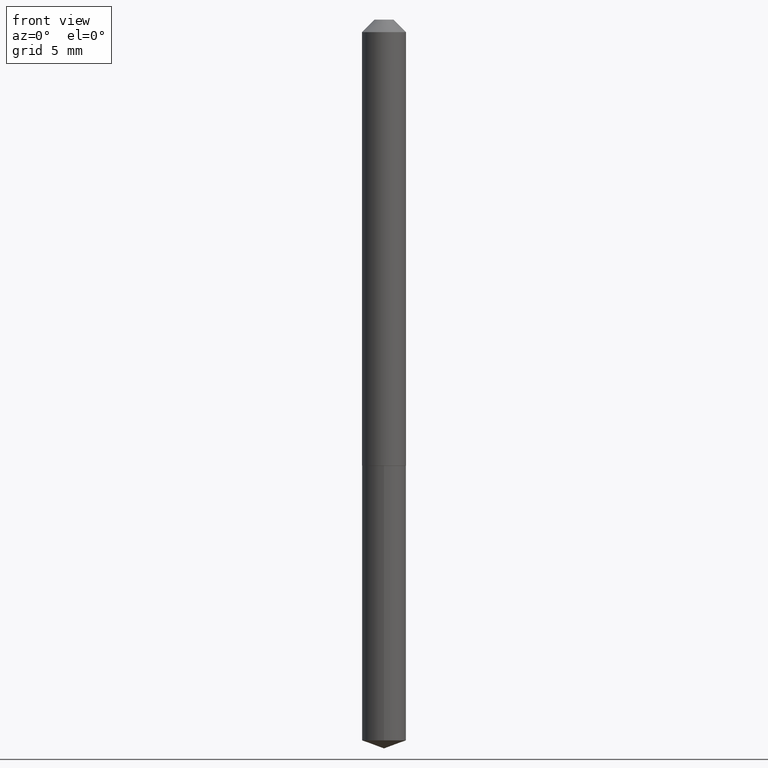
[diagram: clean part render]
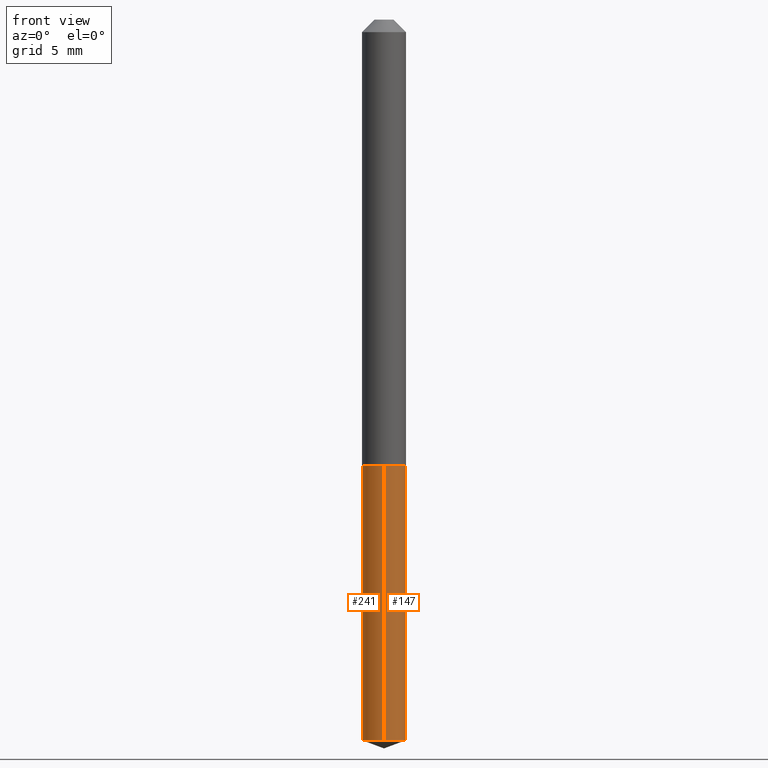
[diagram: same view with one multi-face feature highlighted, each face labeled with its STEP entity id]
A machine part, front view. The highlighted faces form ONE feature: a constant-radius fillet chain: 2 tangent blend faces with common blend radius 1.3894 mm. The faces share edges in the B-rep.
Their STEP definitions:
[1] entity #147 (Cylinder):
#10 = EDGE_CURVE ( 'NONE', #53, #162, #381, .T. ) ;
#16 = CARTESIAN_POINT ( 'NONE',  ( 2.713003093581790888E-29, -3.873449397312585946E-15, -1.109400000000000164 ) ) ;
#18 = EDGE_LOOP ( 'NONE', ( #322, #89, #185, #248 ) ) ;
#39 = DIRECTION ( 'NONE',  ( -6.982962677686265922E-15, -1.000000000000000000, 2.497118824190368439E-15 ) ) ;
#44 = VECTOR ( 'NONE', #303, 39.37007874015748143 ) ;
#46 = CARTESIAN_POINT ( 'NONE',  ( 3.886668764608186723E-16, 0.05469999999999611284, -1.109400000000000164 ) ) ;
#48 = DIRECTION ( 'NONE',  ( -6.982962677686265922E-15, -1.000000000000000000, 2.497118824190368439E-15 ) ) ;
#53 = VERTEX_POINT ( 'NONE', #356 ) ;
#64 = EDGE_CURVE ( 'NONE', #337, #162, #220, .T. ) ;
#77 = CARTESIAN_POINT ( 'NONE',  ( -3.819680584693948069E-16, -0.05470000000000622975, -1.792590828185638641 ) ) ;
#89 = ORIENTED_EDGE ( 'NONE', *, *, #64, .T. ) ;
#122 = LINE ( 'NONE', #298, #345 ) ;
#141 = AXIS2_PLACEMENT_3D ( 'NONE', #242, #281, #39 ) ;
#147 = ADVANCED_FACE ( 'NONE', ( #196 ), #315, .T. ) ;
#150 = DIRECTION ( 'NONE',  ( -2.445808676261614440E-29, 3.490994625549426148E-15, 1.000000000000000000 ) ) ;
#162 = VERTEX_POINT ( 'NONE', #46 ) ;
#185 = ORIENTED_EDGE ( 'NONE', *, *, #10, .F. ) ;
#196 = FACE_OUTER_BOUND ( 'NONE', #18, .T. ) ;
#206 = EDGE_CURVE ( 'NONE', #275, #337, #230, .T. ) ;
#214 = CARTESIAN_POINT ( 'NONE',  ( 3.886668764608018597E-16, 0.05469999999999612672, -1.109400000000000164 ) ) ;
#220 = LINE ( 'NONE', #214, #44 ) ;
#230 = CIRCLE ( 'NONE', #338, 0.05469999999999999862 ) ;
#235 = DIRECTION ( 'NONE',  ( -2.445808676261614440E-29, 3.490994625549426148E-15, 1.000000000000000000 ) ) ;
#242 = CARTESIAN_POINT ( 'NONE',  ( 2.713003093581790888E-29, -3.873449397312585946E-15, -1.109400000000000164 ) ) ;
#243 = CARTESIAN_POINT ( 'NONE',  ( 3.886668764608184751E-16, 0.05469999999999372586, -1.792590828185639307 ) ) ;
#248 = ORIENTED_EDGE ( 'NONE', *, *, #380, .F. ) ;
#256 = DIRECTION ( 'NONE',  ( -2.445808676261614440E-29, 3.490994625549426148E-15, 1.000000000000000000 ) ) ;
#260 = CARTESIAN_POINT ( 'NONE',  ( 4.383957148700584574E-29, -6.258464906733312239E-15, -1.792590828185639085 ) ) ;
#275 = VERTEX_POINT ( 'NONE', #77 ) ;
#281 = DIRECTION ( 'NONE',  ( -2.445808676261614440E-29, 3.490994625549426148E-15, 1.000000000000000000 ) ) ;
#298 = CARTESIAN_POINT ( 'NONE',  ( -3.819680584694116195E-16, -0.05470000000000387747, -1.109399999999999942 ) ) ;
#303 = DIRECTION ( 'NONE',  ( -2.445808676261614440E-29, 3.490994625549426148E-15, 1.000000000000000000 ) ) ;
#315 = CYLINDRICAL_SURFACE ( 'NONE', #347, 0.05469999999999999862 ) ;
#322 = ORIENTED_EDGE ( 'NONE', *, *, #206, .T. ) ;
#337 = VERTEX_POINT ( 'NONE', #243 ) ;
#338 = AXIS2_PLACEMENT_3D ( 'NONE', #260, #235, #382 ) ;
#345 = VECTOR ( 'NONE', #150, 39.37007874015748143 ) ;
#347 = AXIS2_PLACEMENT_3D ( 'NONE', #16, #256, #48 ) ;
#356 = CARTESIAN_POINT ( 'NONE',  ( -3.819680584694116195E-16, -0.05470000000000387747, -1.109399999999999942 ) ) ;
#380 = EDGE_CURVE ( 'NONE', #275, #53, #122, .T. ) ;
#381 = CIRCLE ( 'NONE', #141, 0.05469999999999999862 ) ;
#382 = DIRECTION ( 'NONE',  ( -6.982962677686265922E-15, -1.000000000000000000, 4.994237648380736877E-15 ) ) ;
[2] entity #241 (Cylinder):
#2 = ORIENTED_EDGE ( 'NONE', *, *, #380, .T. ) ;
#44 = VECTOR ( 'NONE', #303, 39.37007874015748143 ) ;
#46 = CARTESIAN_POINT ( 'NONE',  ( 3.886668764608186723E-16, 0.05469999999999611284, -1.109400000000000164 ) ) ;
#53 = VERTEX_POINT ( 'NONE', #356 ) ;
#56 = DIRECTION ( 'NONE',  ( -6.982962677686265922E-15, -1.000000000000000000, 4.994237648380736877E-15 ) ) ;
#64 = EDGE_CURVE ( 'NONE', #337, #162, #220, .T. ) ;
#76 = CARTESIAN_POINT ( 'NONE',  ( 4.383957148700584574E-29, -6.258464906733312239E-15, -1.792590828185639085 ) ) ;
#77 = CARTESIAN_POINT ( 'NONE',  ( -3.819680584693948069E-16, -0.05470000000000622975, -1.792590828185638641 ) ) ;
#80 = CARTESIAN_POINT ( 'NONE',  ( 2.713003093581790888E-29, -3.873449397312585946E-15, -1.109400000000000164 ) ) ;
#105 = DIRECTION ( 'NONE',  ( -2.445808676261614440E-29, 3.490994625549426148E-15, 1.000000000000000000 ) ) ;
#108 = CYLINDRICAL_SURFACE ( 'NONE', #325, 0.05469999999999999862 ) ;
#122 = LINE ( 'NONE', #298, #345 ) ;
#135 = AXIS2_PLACEMENT_3D ( 'NONE', #169, #203, #389 ) ;
#150 = DIRECTION ( 'NONE',  ( -2.445808676261614440E-29, 3.490994625549426148E-15, 1.000000000000000000 ) ) ;
#162 = VERTEX_POINT ( 'NONE', #46 ) ;
#169 = CARTESIAN_POINT ( 'NONE',  ( 2.713003093581790888E-29, -3.873449397312585946E-15, -1.109400000000000164 ) ) ;
#170 = AXIS2_PLACEMENT_3D ( 'NONE', #76, #324, #56 ) ;
#180 = CIRCLE ( 'NONE', #135, 0.05469999999999999862 ) ;
#187 = ORIENTED_EDGE ( 'NONE', *, *, #193, .F. ) ;
#193 = EDGE_CURVE ( 'NONE', #162, #53, #180, .T. ) ;
#203 = DIRECTION ( 'NONE',  ( -2.445808676261614440E-29, 3.490994625549426148E-15, 1.000000000000000000 ) ) ;
#209 = FACE_OUTER_BOUND ( 'NONE', #355, .T. ) ;
#214 = CARTESIAN_POINT ( 'NONE',  ( 3.886668764608018597E-16, 0.05469999999999612672, -1.109400000000000164 ) ) ;
#220 = LINE ( 'NONE', #214, #44 ) ;
#239 = ORIENTED_EDGE ( 'NONE', *, *, #326, .T. ) ;
#241 = ADVANCED_FACE ( 'NONE', ( #209 ), #108, .T. ) ;
#243 = CARTESIAN_POINT ( 'NONE',  ( 3.886668764608184751E-16, 0.05469999999999372586, -1.792590828185639307 ) ) ;
#259 = ORIENTED_EDGE ( 'NONE', *, *, #64, .F. ) ;
#275 = VERTEX_POINT ( 'NONE', #77 ) ;
#289 = DIRECTION ( 'NONE',  ( -6.982962677686265922E-15, -1.000000000000000000, 2.497118824190368439E-15 ) ) ;
#298 = CARTESIAN_POINT ( 'NONE',  ( -3.819680584694116195E-16, -0.05470000000000387747, -1.109399999999999942 ) ) ;
#303 = DIRECTION ( 'NONE',  ( -2.445808676261614440E-29, 3.490994625549426148E-15, 1.000000000000000000 ) ) ;
#324 = DIRECTION ( 'NONE',  ( -2.445808676261614440E-29, 3.490994625549426148E-15, 1.000000000000000000 ) ) ;
#325 = AXIS2_PLACEMENT_3D ( 'NONE', #80, #105, #289 ) ;
#326 = EDGE_CURVE ( 'NONE', #337, #275, #333, .T. ) ;
#333 = CIRCLE ( 'NONE', #170, 0.05469999999999999862 ) ;
#337 = VERTEX_POINT ( 'NONE', #243 ) ;
#345 = VECTOR ( 'NONE', #150, 39.37007874015748143 ) ;
#355 = EDGE_LOOP ( 'NONE', ( #259, #239, #2, #187 ) ) ;
#356 = CARTESIAN_POINT ( 'NONE',  ( -3.819680584694116195E-16, -0.05470000000000387747, -1.109399999999999942 ) ) ;
#380 = EDGE_CURVE ( 'NONE', #275, #53, #122, .T. ) ;
#389 = DIRECTION ( 'NONE',  ( -6.982962677686265922E-15, -1.000000000000000000, 2.497118824190368439E-15 ) ) ;